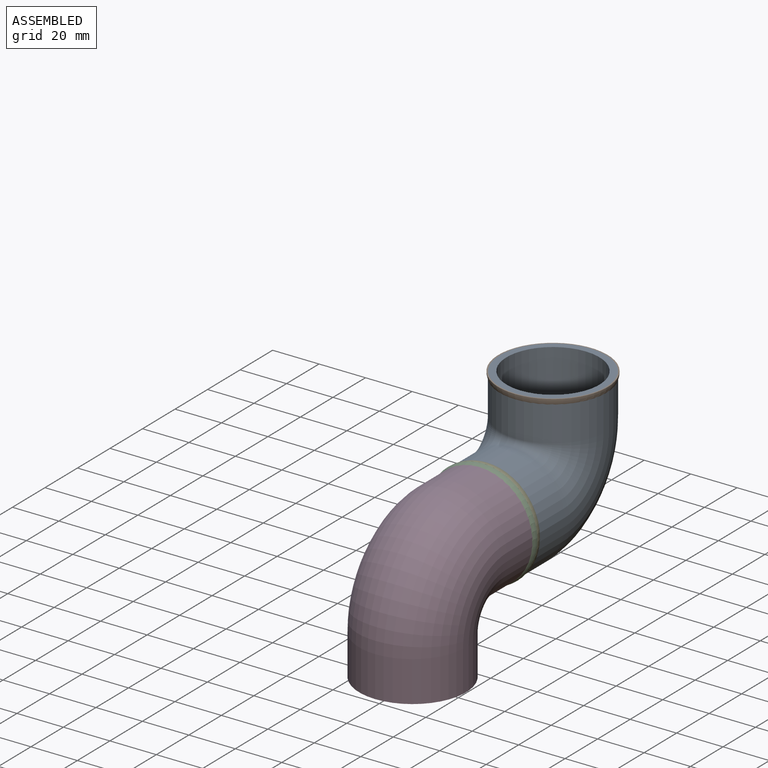
[diagram: assembled view]
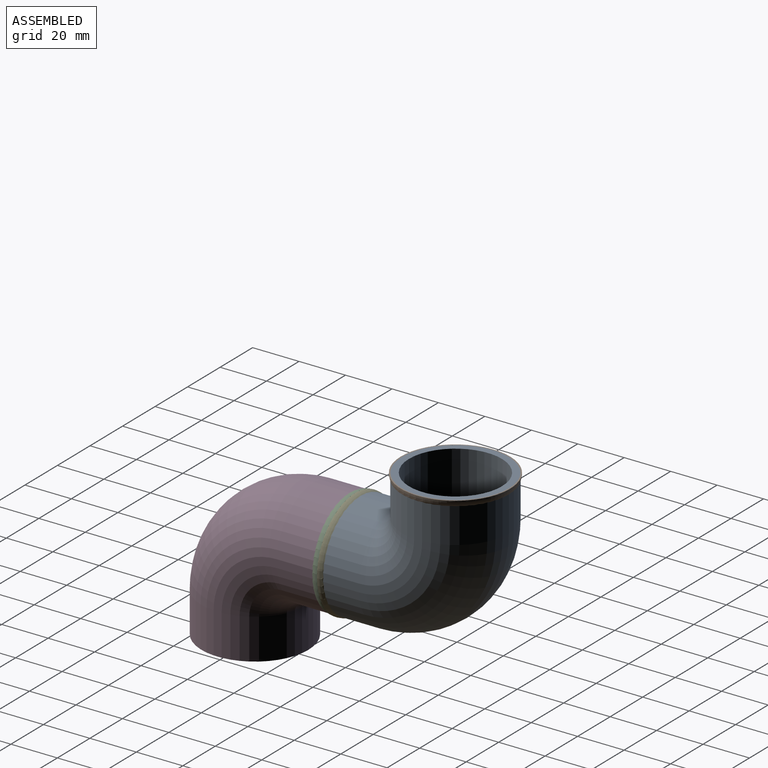
[diagram: assembled view, second angle]
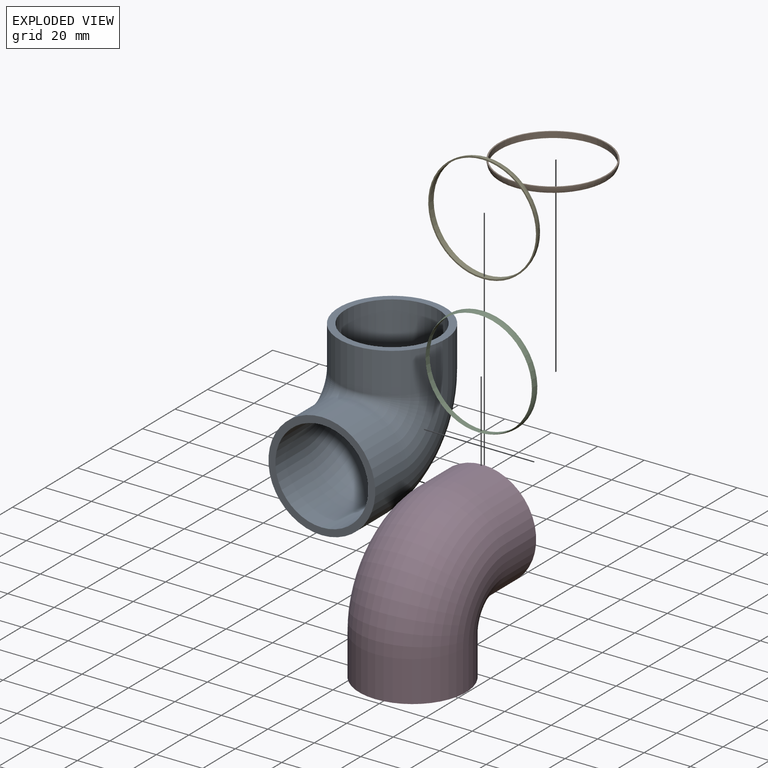
[diagram: exploded view]
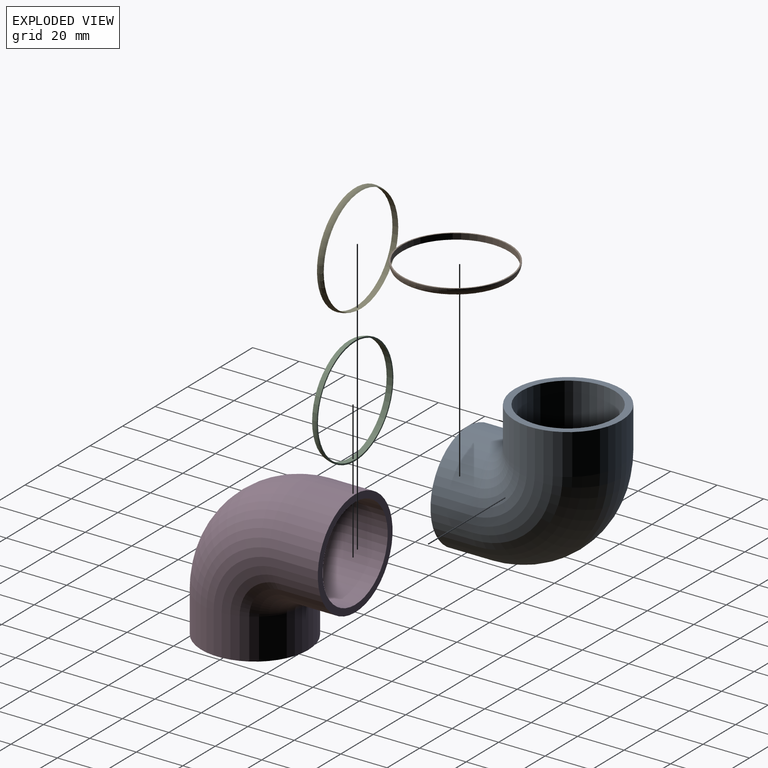
[diagram: exploded view, second angle]
ASSEMBLY  parts=5 mates=4
PART A: 8 faces, bbox 46x70.2x70 mm
  f0: cylinder r=20mm len=40mm, axis (0,1,0), area 2223.2mm2, adj f1,f3
  f1: torus R=25.48mm, axis (1,0,0), area 5030mm2, adj f0,f2
  f2: cylinder r=20mm len=40mm, axis (0,0,1), area 2197.8mm2, adj f1,f4
  f3: plane 46x46mm, normal (0,-1,0), area 405.3mm2, adj f0,f5
  f4: plane 46x46mm, normal (0,0,1), area 405.3mm2, adj f2,f7
  f5: cylinder r=23mm len=46mm, axis (0,1,0), area 2556.7mm2, adj f3,f6
  f6: torus R=25.48mm, axis (1,0,0), area 5784.4mm2, adj f5,f7
  f7: cylinder r=23mm len=46mm, axis (0,0,1), area 2527.4mm2, adj f4,f6
PART B: 3 faces, bbox 50.9x7.9x50.9 mm
  f0: cylinder r=22.91mm len=45.82mm, axis (0,-1,0), area 359.9mm2, adj f1,f2
  f1: torus R=17.91mm, axis (0,-1,0), area 379.5mm2, adj f0,f2
  f2: plane 47x47mm, normal (0,-1,0), area 86mm2, adj f0,f1
PART C: same geometry as B
PART D: same geometry as A
PART E: same geometry as B
PLACE A t=(-0.27,4.04,0)mm fixed
PLACE B rot(axis=(-1,0,0),90deg) t=(-0.27,47.21,42.97)mm
PLACE C rot(axis=(1,0,0),180deg) t=(-0.27,4.04,0)mm
PLACE D rot(axis=(1,0,0),180deg) t=(-0.27,4.04,0)mm
PLACE E t=(-0.27,4.04,0)mm
MATE fastened C.f0 <-> D.f0  axis (0,1,0) through (-0.27,4.04,0)mm
MATE fastened A.f2 <-> B.f0  axis (0,0,1) through (-0.27,47.21,42.97)mm
MATE fastened D.f0 <-> E.f0  axis (0,1,0) through (-0.27,4.04,0)mm
MATE fastened A.f0 <-> E.f0  axis (0,-1,0) through (-0.27,4.04,0)mm
